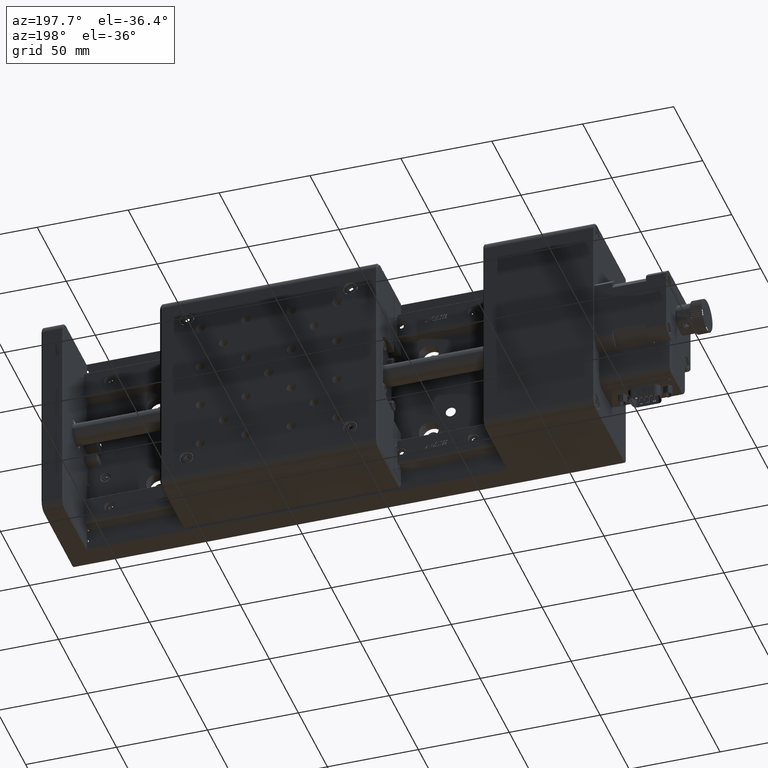
[diagram: clean part render]
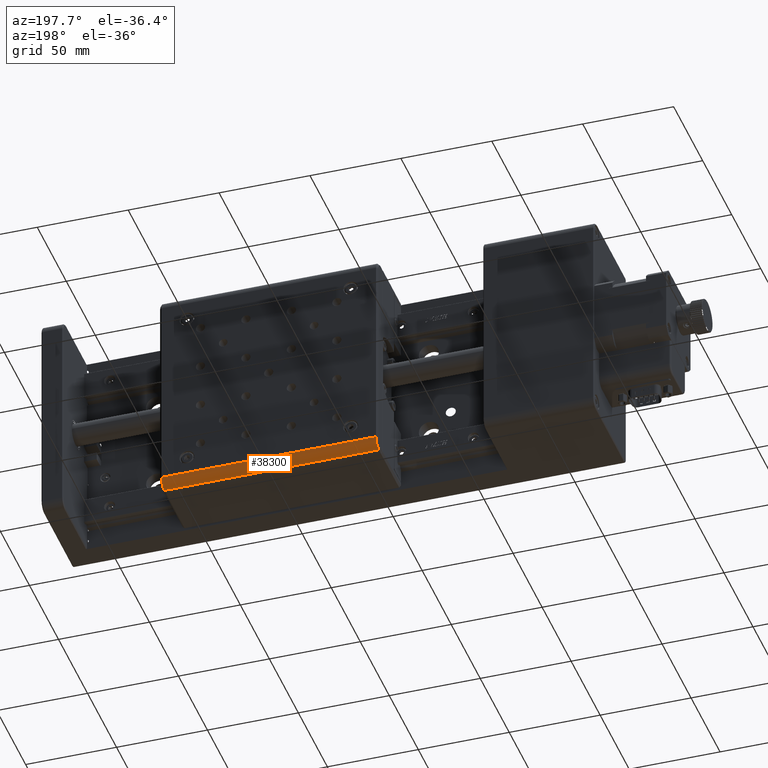
[diagram: same view with one face highlighted and labeled with its STEP entity id]
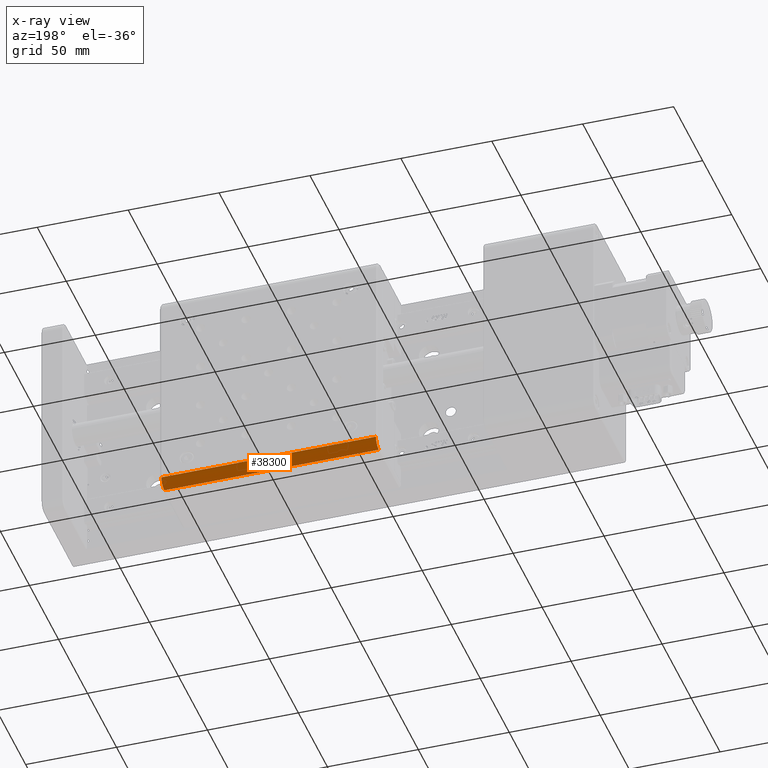
[diagram: x-ray of the same camera — body ghosted, the highlighted face saturated]
A machine part, auxiliary view. The second image highlights one B-rep face of the part: STEP entity #38300.
The next image is the same camera in x-ray: the body ghosted, the highlighted face saturated — about 0% of this face is hidden behind the body in this view.
In plain terms, the highlighted cylindrical surface (edge-blend (fillet) strip) has radius 5 mm, axis along (-1, -0, 0).
Its self-contained STEP definition (entity closure, byte-faithful):
#55 = CARTESIAN_POINT ( 'NONE',  ( 9.594010902184848500, 51.00000000000048300, -20.22112276676144700 ) ) ;
#2999 = EDGE_CURVE ( 'NONE', #16233, #32629, #39120, .T. ) ;
#3300 = DIRECTION ( 'NONE',  ( 0.0000000000000000000, -1.000000000000000000, -1.353084311261910300E-014 ) ) ;
#3729 = AXIS2_PLACEMENT_3D ( 'NONE', #48935, #26107, #3300 ) ;
#3888 = VECTOR ( 'NONE', #48721, 1000.000000000000000 ) ;
#4025 = CIRCLE ( 'NONE', #8283, 4.999999999999997300 ) ;
#6685 = ORIENTED_EDGE ( 'NONE', *, *, #49151, .F. ) ;
#8283 = AXIS2_PLACEMENT_3D ( 'NONE', #46508, #8559, #31368 ) ;
#8559 = DIRECTION ( 'NONE',  ( -1.000000000000000000, -1.083698070157791000E-016, 1.727014250132936800E-016 ) ) ;
#10247 = DIRECTION ( 'NONE',  ( 0.0000000000000000000, 1.000000000000000000, 1.353084311261910300E-014 ) ) ;
#12564 = CIRCLE ( 'NONE', #3729, 4.999999999999997300 ) ;
#12792 = CYLINDRICAL_SURFACE ( 'NONE', #29692, 4.999999999999997300 ) ;
#13906 = CARTESIAN_POINT ( 'NONE',  ( -49.40598909781515100, 51.00000000000040500, -15.22112276676144300 ) ) ;
#16205 = CARTESIAN_POINT ( 'NONE',  ( -108.4059890978151500, 56.00000000000040500, -15.22112276676136700 ) ) ;
#16233 = VERTEX_POINT ( 'NONE', #31562 ) ;
#18229 = CARTESIAN_POINT ( 'NONE',  ( -49.40598909781515100, 56.00000000000041200, -15.22112276676137400 ) ) ;
#21246 = VERTEX_POINT ( 'NONE', #55 ) ;
#23392 = VERTEX_POINT ( 'NONE', #38528 ) ;
#25012 = CARTESIAN_POINT ( 'NONE',  ( 10.59401090218484900, 51.00000000000048300, -20.22112276676144700 ) ) ;
#26107 = DIRECTION ( 'NONE',  ( 1.000000000000000000, 1.083698070157791000E-016, -1.727014250132936800E-016 ) ) ;
#28114 = ORIENTED_EDGE ( 'NONE', *, *, #28118, .T. ) ;
#28118 = EDGE_CURVE ( 'NONE', #23392, #32629, #12564, .T. ) ;
#28589 = ORIENTED_EDGE ( 'NONE', *, *, #2999, .F. ) ;
#28686 = DIRECTION ( 'NONE',  ( 1.000000000000000000, 1.083698070157791000E-016, -1.727014250132936800E-016 ) ) ;
#29372 = ORIENTED_EDGE ( 'NONE', *, *, #45515, .T. ) ;
#29692 = AXIS2_PLACEMENT_3D ( 'NONE', #13906, #48037, #10247 ) ;
#31368 = DIRECTION ( 'NONE',  ( 0.0000000000000000000, 1.000000000000000000, 1.353084311261910300E-014 ) ) ;
#31562 = CARTESIAN_POINT ( 'NONE',  ( 9.594010902184848500, 56.00000000000041900, -15.22112276676138100 ) ) ;
#32629 = VERTEX_POINT ( 'NONE', #16205 ) ;
#38300 = ADVANCED_FACE ( 'NONE', ( #49113 ), #12792, .T. ) ;
#38528 = CARTESIAN_POINT ( 'NONE',  ( -108.4059890978151500, 51.00000000000046900, -20.22112276676143200 ) ) ;
#39120 = LINE ( 'NONE', #18229, #3888 ) ;
#40714 = VECTOR ( 'NONE', #28686, 1000.000000000000000 ) ;
#45515 = EDGE_CURVE ( 'NONE', #16233, #21246, #4025, .T. ) ;
#46508 = CARTESIAN_POINT ( 'NONE',  ( 9.594010902184848500, 51.00000000000041200, -15.22112276676145000 ) ) ;
#47032 = EDGE_LOOP ( 'NONE', ( #28589, #29372, #6685, #28114 ) ) ;
#47853 = LINE ( 'NONE', #25012, #40714 ) ;
#48037 = DIRECTION ( 'NONE',  ( -1.000000000000000000, -1.083698070157791000E-016, 1.727014250132936800E-016 ) ) ;
#48721 = DIRECTION ( 'NONE',  ( -1.000000000000000000, -1.083698070157791000E-016, 1.727014250132936800E-016 ) ) ;
#48935 = CARTESIAN_POINT ( 'NONE',  ( -108.4059890978151500, 51.00000000000039800, -15.22112276676143600 ) ) ;
#49113 = FACE_OUTER_BOUND ( 'NONE', #47032, .T. ) ;
#49151 = EDGE_CURVE ( 'NONE', #23392, #21246, #47853, .T. ) ;